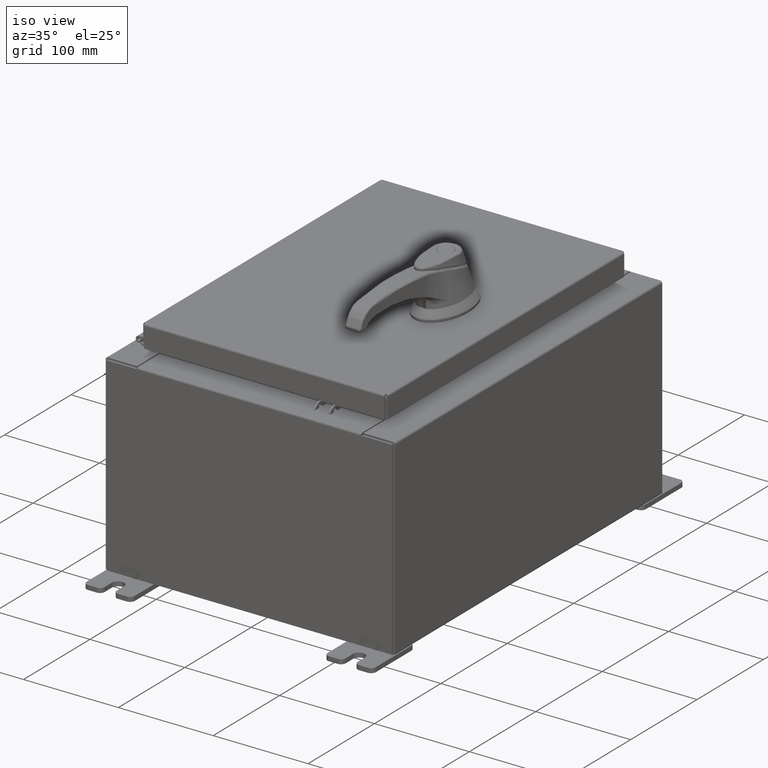
[diagram: clean part render]
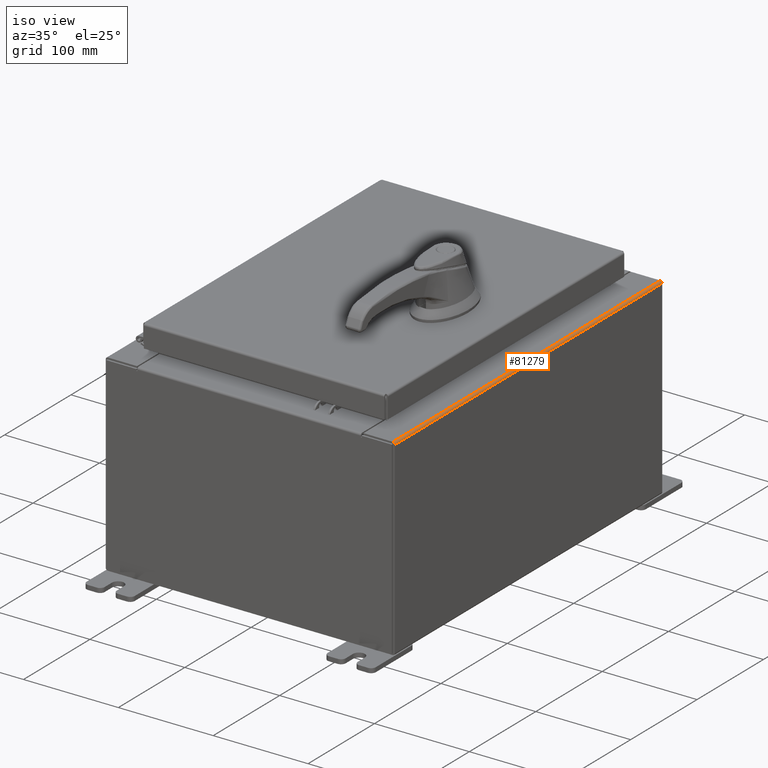
[diagram: same view with one face highlighted and labeled with its STEP entity id]
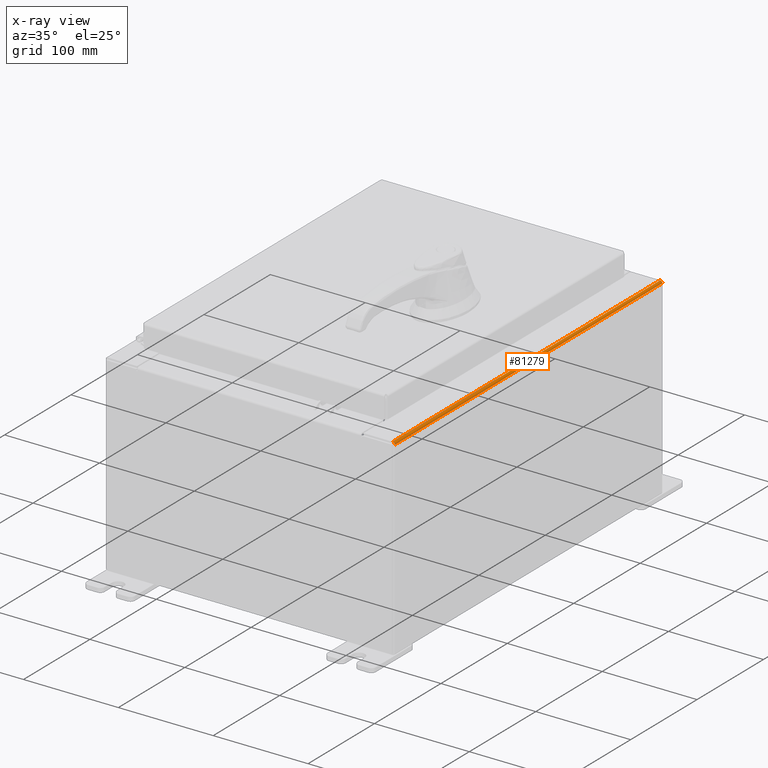
[diagram: x-ray of the same camera — body ghosted, the highlighted face saturated]
A machine part, iso view. The second image highlights one B-rep face of the part: STEP entity #81279.
The next image is the same camera in x-ray: the body ghosted, the highlighted face saturated — about 0% of this face is hidden behind the body in this view.
In plain terms, the highlighted cylindrical surface (edge-blend (fillet) strip) has radius 2.2276 mm, axis along (0, 1, 0).
Its self-contained STEP definition (entity closure, byte-faithful):
#1299 = ORIENTED_EDGE ( 'NONE', *, *, #74534, .F. ) ;
#1887 = AXIS2_PLACEMENT_3D ( 'NONE', #97482, #48460, #105717 ) ;
#2387 = LINE ( 'NONE', #96423, #62399 ) ;
#2691 = DIRECTION ( 'NONE',  ( 0.0000000000000000000, 1.000000000000000000, 0.0000000000000000000 ) ) ;
#5432 = CARTESIAN_POINT ( 'NONE',  ( 6.000000000000029300, 7.925300000000000900, 7.837599999999992100 ) ) ;
#5846 = ORIENTED_EDGE ( 'NONE', *, *, #77194, .F. ) ;
#10827 = CARTESIAN_POINT ( 'NONE',  ( 5.912300000000027600, 7.925300000000000900, 7.837599999999999200 ) ) ;
#15603 = CARTESIAN_POINT ( 'NONE',  ( 5.912300000000027600, 7.925300000000000900, 7.925300000000000000 ) ) ;
#23909 = EDGE_LOOP ( 'NONE', ( #5846, #1299, #85469, #33454 ) ) ;
#33165 = CARTESIAN_POINT ( 'NONE',  ( 6.000000000000026600, -7.925300000000000900, 7.837599999999998300 ) ) ;
#33454 = ORIENTED_EDGE ( 'NONE', *, *, #36784, .F. ) ;
#34556 = CARTESIAN_POINT ( 'NONE',  ( 5.912300000000027600, 7.925300000000000900, 7.837599999999999200 ) ) ;
#35078 = DIRECTION ( 'NONE',  ( 1.245996804407854400E-014, 0.0000000000000000000, 1.000000000000000000 ) ) ;
#36784 = EDGE_CURVE ( 'NONE', #103796, #79772, #64896, .T. ) ;
#38506 = CARTESIAN_POINT ( 'NONE',  ( 5.912300000000026800, -7.925300000000000900, 7.925300000000000900 ) ) ;
#41471 = FACE_OUTER_BOUND ( 'NONE', #23909, .T. ) ;
#42247 = AXIS2_PLACEMENT_3D ( 'NONE', #10827, #2691, #35078 ) ;
#42755 = DIRECTION ( 'NONE',  ( 0.0000000000000000000, 0.0000000000000000000, 1.000000000000000000 ) ) ;
#46726 = DIRECTION ( 'NONE',  ( -6.893992640440775600E-017, -1.000000000000000000, 6.893992640440816300E-017 ) ) ;
#48460 = DIRECTION ( 'NONE',  ( -0.0000000000000000000, -1.000000000000000000, -0.0000000000000000000 ) ) ;
#49700 = LINE ( 'NONE', #38506, #90671 ) ;
#62399 = VECTOR ( 'NONE', #88211, 39.37007874015748100 ) ;
#64896 = CIRCLE ( 'NONE', #1887, 0.08770000000000136000 ) ;
#74237 = VERTEX_POINT ( 'NONE', #5432 ) ;
#74534 = EDGE_CURVE ( 'NONE', #96019, #74237, #95981, .T. ) ;
#77194 = EDGE_CURVE ( 'NONE', #74237, #103796, #2387, .T. ) ;
#79772 = VERTEX_POINT ( 'NONE', #95237 ) ;
#81279 = ADVANCED_FACE ( 'NONE', ( #41471 ), #104206, .T. ) ;
#85469 = ORIENTED_EDGE ( 'NONE', *, *, #94810, .T. ) ;
#88211 = DIRECTION ( 'NONE',  ( -0.0000000000000000000, -1.000000000000000000, -0.0000000000000000000 ) ) ;
#89298 = AXIS2_PLACEMENT_3D ( 'NONE', #34556, #91793, #42755 ) ;
#90671 = VECTOR ( 'NONE', #46726, 39.37007874015748100 ) ;
#91793 = DIRECTION ( 'NONE',  ( 0.0000000000000000000, 1.000000000000000000, 0.0000000000000000000 ) ) ;
#94810 = EDGE_CURVE ( 'NONE', #96019, #79772, #49700, .T. ) ;
#95237 = CARTESIAN_POINT ( 'NONE',  ( 5.912300000000027600, -7.925300000000000900, 7.925300000000000900 ) ) ;
#95981 = CIRCLE ( 'NONE', #89298, 0.08770000000000136000 ) ;
#96019 = VERTEX_POINT ( 'NONE', #15603 ) ;
#96423 = CARTESIAN_POINT ( 'NONE',  ( 6.000000000000029300, 7.925300000000000900, 7.837599999999992100 ) ) ;
#97482 = CARTESIAN_POINT ( 'NONE',  ( 5.912300000000027600, -7.925300000000000900, 7.837599999999999200 ) ) ;
#103796 = VERTEX_POINT ( 'NONE', #33165 ) ;
#104206 = CYLINDRICAL_SURFACE ( 'NONE', #42247, 0.08770000000000136000 ) ;
#105717 = DIRECTION ( 'NONE',  ( 0.0000000000000000000, 0.0000000000000000000, 1.000000000000000000 ) ) ;